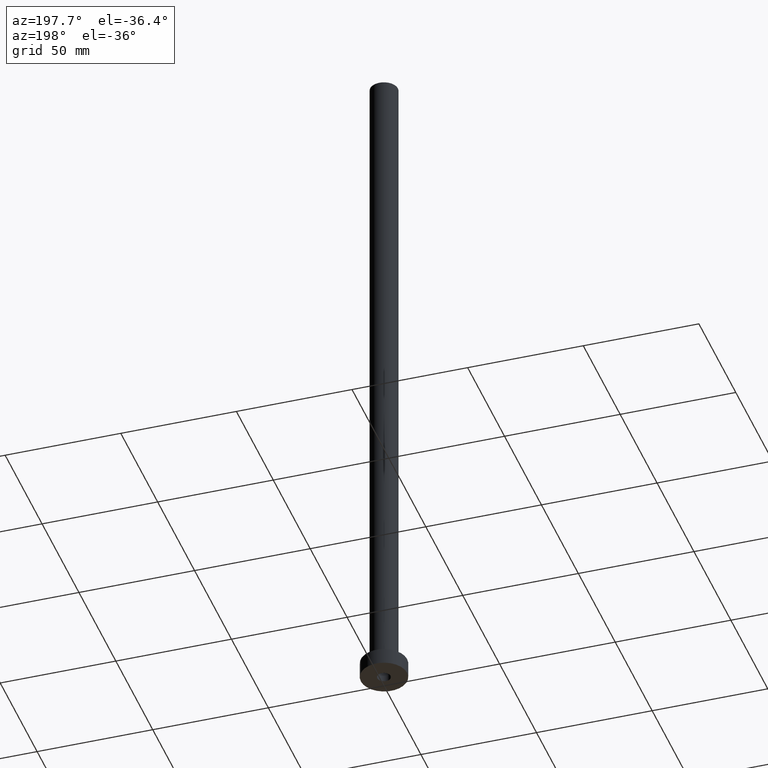
[diagram: clean part render]
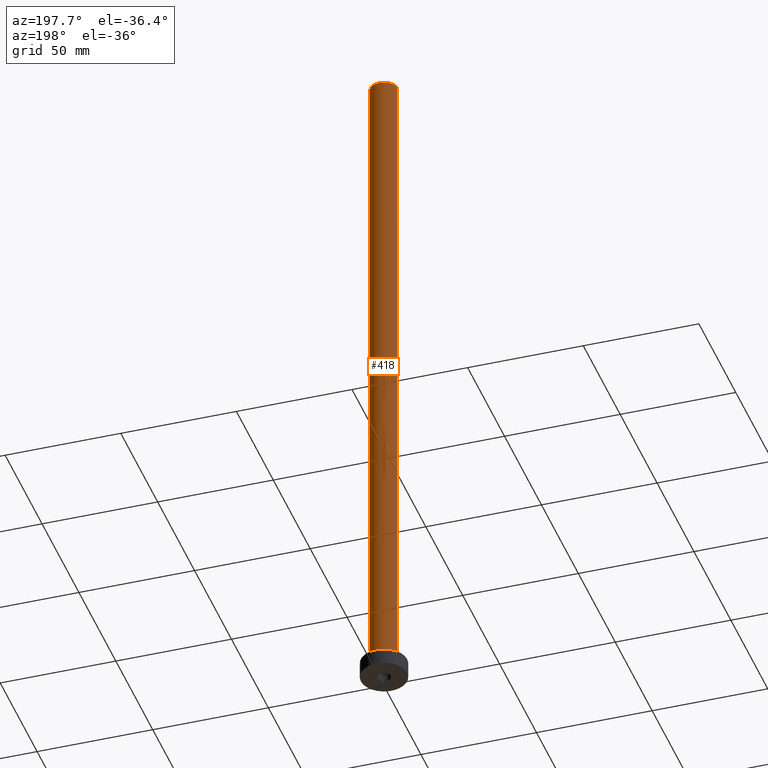
[diagram: same view with one face highlighted and labeled with its STEP entity id]
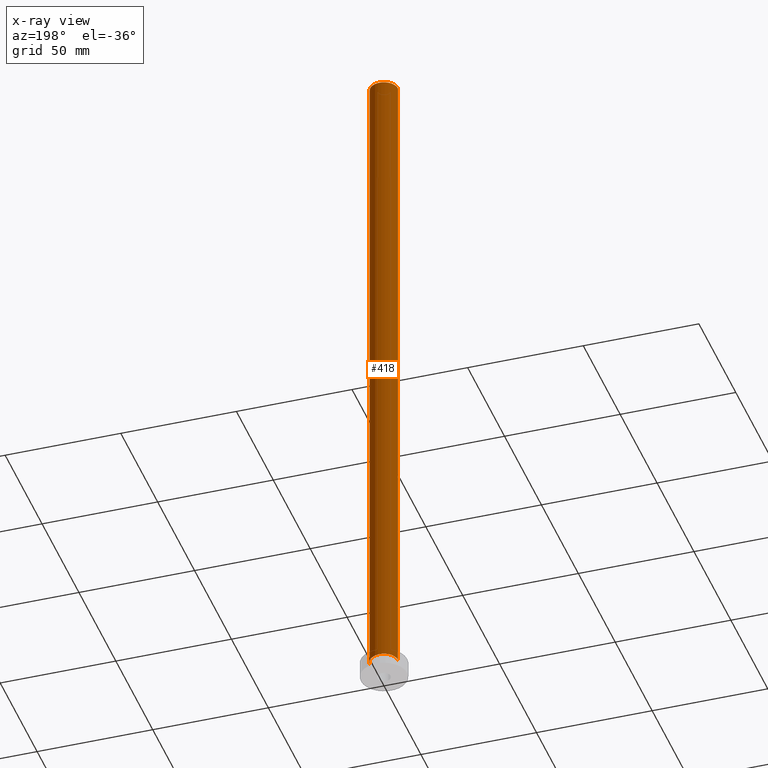
[diagram: x-ray of the same camera — body ghosted, the highlighted face saturated]
A machine part, auxiliary view. The second image highlights one B-rep face of the part: STEP entity #418.
The next image is the same camera in x-ray: the body ghosted, the highlighted face saturated — about 0% of this face is hidden behind the body in this view.
In plain terms, the highlighted cylindrical surface (edge-blend (fillet) strip) has radius 6 mm, axis along (-0, -0, -1).
Its self-contained STEP definition (entity closure, byte-faithful):
#3 = DIRECTION ( 'NONE',  ( -1.000000000000000000, 0.000000000000000000, 0.000000000000000000 ) ) ;
#4 = CARTESIAN_POINT ( 'NONE',  ( 6.000000000000000888, 7.347880794884120722E-16, 300.0000000000000000 ) ) ;
#23 = DIRECTION ( 'NONE',  ( -0.000000000000000000, -0.000000000000000000, -1.000000000000000000 ) ) ;
#47 = EDGE_CURVE ( 'NONE', #409, #180, #426, .T. ) ;
#61 = ORIENTED_EDGE ( 'NONE', *, *, #354, .F. ) ;
#67 = EDGE_LOOP ( 'NONE', ( #304, #218, #107, #61 ) ) ;
#71 = DIRECTION ( 'NONE',  ( -0.000000000000000000, -0.000000000000000000, -1.000000000000000000 ) ) ;
#94 = CARTESIAN_POINT ( 'NONE',  ( -6.000000000000000888, 0.000000000000000000, 300.0000000000000000 ) ) ;
#102 = CARTESIAN_POINT ( 'NONE',  ( 6.000000000000000888, 7.347880794884120722E-16, 7.500000000000007105 ) ) ;
#104 = FACE_OUTER_BOUND ( 'NONE', #67, .T. ) ;
#107 = ORIENTED_EDGE ( 'NONE', *, *, #135, .T. ) ;
#113 = CARTESIAN_POINT ( 'NONE',  ( 0.000000000000000000, 0.000000000000000000, 7.500000000000007105 ) ) ;
#130 = DIRECTION ( 'NONE',  ( 0.000000000000000000, 0.000000000000000000, 1.000000000000000000 ) ) ;
#135 = EDGE_CURVE ( 'NONE', #440, #389, #359, .T. ) ;
#168 = VECTOR ( 'NONE', #253, 1000.000000000000000 ) ;
#170 = CARTESIAN_POINT ( 'NONE',  ( -6.000000000000000888, 0.000000000000000000, 7.500000000000007105 ) ) ;
#175 = AXIS2_PLACEMENT_3D ( 'NONE', #113, #238, #315 ) ;
#179 = CYLINDRICAL_SURFACE ( 'NONE', #217, 6.000000000000000888 ) ;
#180 = VERTEX_POINT ( 'NONE', #269 ) ;
#198 = AXIS2_PLACEMENT_3D ( 'NONE', #281, #130, #349 ) ;
#217 = AXIS2_PLACEMENT_3D ( 'NONE', #326, #71, #3 ) ;
#218 = ORIENTED_EDGE ( 'NONE', *, *, #450, .T. ) ;
#238 = DIRECTION ( 'NONE',  ( 0.000000000000000000, 0.000000000000000000, 1.000000000000000000 ) ) ;
#253 = DIRECTION ( 'NONE',  ( -0.000000000000000000, -0.000000000000000000, -1.000000000000000000 ) ) ;
#269 = CARTESIAN_POINT ( 'NONE',  ( -6.000000000000000888, 0.000000000000000000, 300.0000000000000000 ) ) ;
#281 = CARTESIAN_POINT ( 'NONE',  ( 0.000000000000000000, 0.000000000000000000, 300.0000000000000000 ) ) ;
#285 = LINE ( 'NONE', #94, #334 ) ;
#304 = ORIENTED_EDGE ( 'NONE', *, *, #47, .F. ) ;
#315 = DIRECTION ( 'NONE',  ( 1.000000000000000000, 0.000000000000000000, 0.000000000000000000 ) ) ;
#326 = CARTESIAN_POINT ( 'NONE',  ( 0.000000000000000000, 0.000000000000000000, 300.0000000000000000 ) ) ;
#327 = LINE ( 'NONE', #4, #168 ) ;
#334 = VECTOR ( 'NONE', #23, 1000.000000000000000 ) ;
#349 = DIRECTION ( 'NONE',  ( 1.000000000000000000, 0.000000000000000000, 0.000000000000000000 ) ) ;
#354 = EDGE_CURVE ( 'NONE', #180, #389, #285, .T. ) ;
#359 = CIRCLE ( 'NONE', #175, 6.000000000000000888 ) ;
#389 = VERTEX_POINT ( 'NONE', #170 ) ;
#409 = VERTEX_POINT ( 'NONE', #428 ) ;
#418 = ADVANCED_FACE ( 'NONE', ( #104 ), #179, .T. ) ;
#426 = CIRCLE ( 'NONE', #198, 6.000000000000000888 ) ;
#428 = CARTESIAN_POINT ( 'NONE',  ( 6.000000000000000888, 7.347880794884120722E-16, 300.0000000000000000 ) ) ;
#440 = VERTEX_POINT ( 'NONE', #102 ) ;
#450 = EDGE_CURVE ( 'NONE', #409, #440, #327, .T. ) ;